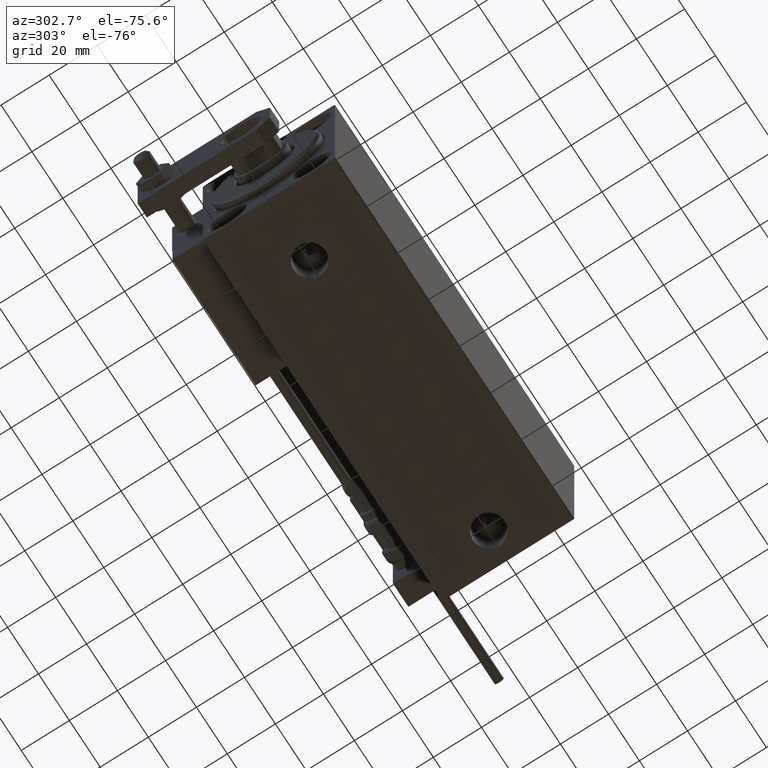
[diagram: clean part render]
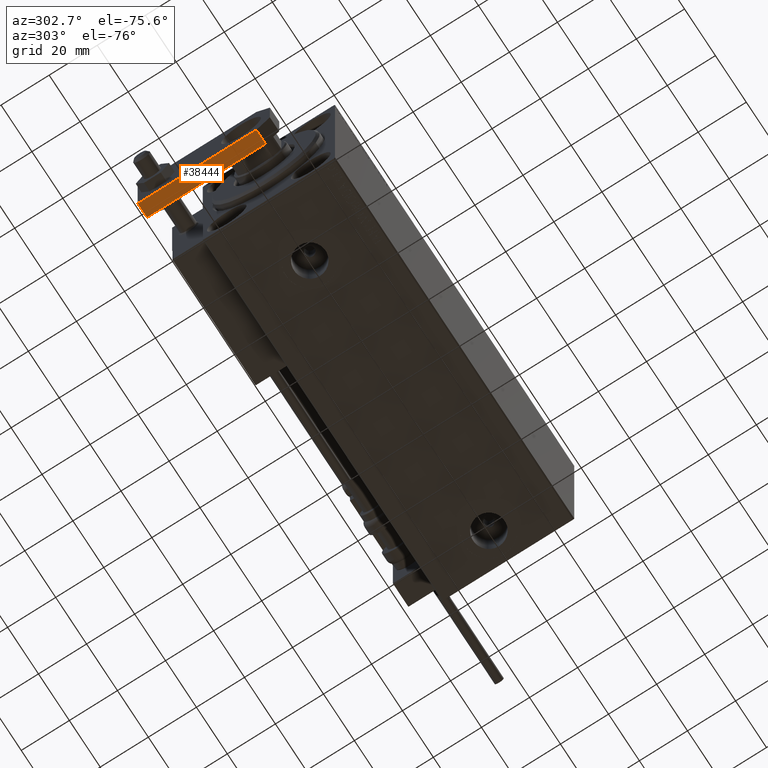
[diagram: same view with one face highlighted and labeled with its STEP entity id]
A machine part, auxiliary view. The second image highlights one B-rep face of the part: STEP entity #38444.
In plain terms, the highlighted planar face has unit normal (0, -0, 1).
Its self-contained STEP definition (entity closure, byte-faithful):
#899 = CARTESIAN_POINT ( 'NONE',  ( -12.49999999999999822, 55.00000000000000000, 0.000000000000000000 ) ) ;
#1633 = VECTOR ( 'NONE', #26282, 1000.000000000000000 ) ;
#2651 = PLANE ( 'NONE',  #38050 ) ;
#4138 = CARTESIAN_POINT ( 'NONE',  ( -12.50000000000000355, 5.660000000000005471, 0.000000000000000000 ) ) ;
#4721 = VERTEX_POINT ( 'NONE', #19820 ) ;
#5783 = DIRECTION ( 'NONE',  ( 9.462128050782583143E-17, 1.000000000000000000, 0.000000000000000000 ) ) ;
#6863 = LINE ( 'NONE', #42337, #44358 ) ;
#8299 = EDGE_CURVE ( 'NONE', #30881, #21985, #23917, .T. ) ;
#8779 = DIRECTION ( 'NONE',  ( -0.000000000000000000, -0.000000000000000000, -1.000000000000000000 ) ) ;
#9568 = ORIENTED_EDGE ( 'NONE', *, *, #8299, .T. ) ;
#9940 = CARTESIAN_POINT ( 'NONE',  ( -12.50000000000000355, 5.660000000000005471, 6.000000000000000000 ) ) ;
#10198 = EDGE_CURVE ( 'NONE', #21985, #19353, #49719, .T. ) ;
#10736 = FACE_OUTER_BOUND ( 'NONE', #37274, .T. ) ;
#12072 = VECTOR ( 'NONE', #8779, 1000.000000000000000 ) ;
#13462 = LINE ( 'NONE', #13713, #12072 ) ;
#13713 = CARTESIAN_POINT ( 'NONE',  ( -12.49999999999999822, 55.00000000000000000, 6.000000000000000000 ) ) ;
#15125 = ORIENTED_EDGE ( 'NONE', *, *, #31427, .T. ) ;
#18097 = EDGE_CURVE ( 'NONE', #4721, #19353, #6863, .T. ) ;
#18200 = ORIENTED_EDGE ( 'NONE', *, *, #18097, .F. ) ;
#19353 = VERTEX_POINT ( 'NONE', #9940 ) ;
#19820 = CARTESIAN_POINT ( 'NONE',  ( -12.49999999999999822, 55.00000000000000000, 6.000000000000000000 ) ) ;
#21985 = VERTEX_POINT ( 'NONE', #4138 ) ;
#22209 = CARTESIAN_POINT ( 'NONE',  ( -12.49999999999999822, 55.00000000000000000, 6.000000000000000000 ) ) ;
#23917 = LINE ( 'NONE', #44493, #37361 ) ;
#26282 = DIRECTION ( 'NONE',  ( 0.000000000000000000, 0.000000000000000000, 1.000000000000000000 ) ) ;
#28823 = DIRECTION ( 'NONE',  ( -9.462128050782584375E-17, -1.000000000000000000, 0.000000000000000000 ) ) ;
#30311 = DIRECTION ( 'NONE',  ( -9.462128050782584375E-17, -1.000000000000000000, 0.000000000000000000 ) ) ;
#30881 = VERTEX_POINT ( 'NONE', #899 ) ;
#31427 = EDGE_CURVE ( 'NONE', #4721, #30881, #13462, .T. ) ;
#37274 = EDGE_LOOP ( 'NONE', ( #9568, #45623, #18200, #15125 ) ) ;
#37361 = VECTOR ( 'NONE', #28823, 1000.000000000000000 ) ;
#38050 = AXIS2_PLACEMENT_3D ( 'NONE', #22209, #41774, #5783 ) ;
#38444 = ADVANCED_FACE ( 'NONE', ( #10736 ), #2651, .F. ) ;
#41774 = DIRECTION ( 'NONE',  ( 1.000000000000000000, -9.462128050782583143E-17, 0.000000000000000000 ) ) ;
#42337 = CARTESIAN_POINT ( 'NONE',  ( -12.49999999999999822, 55.00000000000000000, 6.000000000000000000 ) ) ;
#44358 = VECTOR ( 'NONE', #30311, 1000.000000000000000 ) ;
#44493 = CARTESIAN_POINT ( 'NONE',  ( -12.49999999999999822, 55.00000000000000000, 0.000000000000000000 ) ) ;
#45623 = ORIENTED_EDGE ( 'NONE', *, *, #10198, .T. ) ;
#46087 = CARTESIAN_POINT ( 'NONE',  ( -12.50000000000000355, 5.660000000000005471, 6.000000000000000000 ) ) ;
#49719 = LINE ( 'NONE', #46087, #1633 ) ;